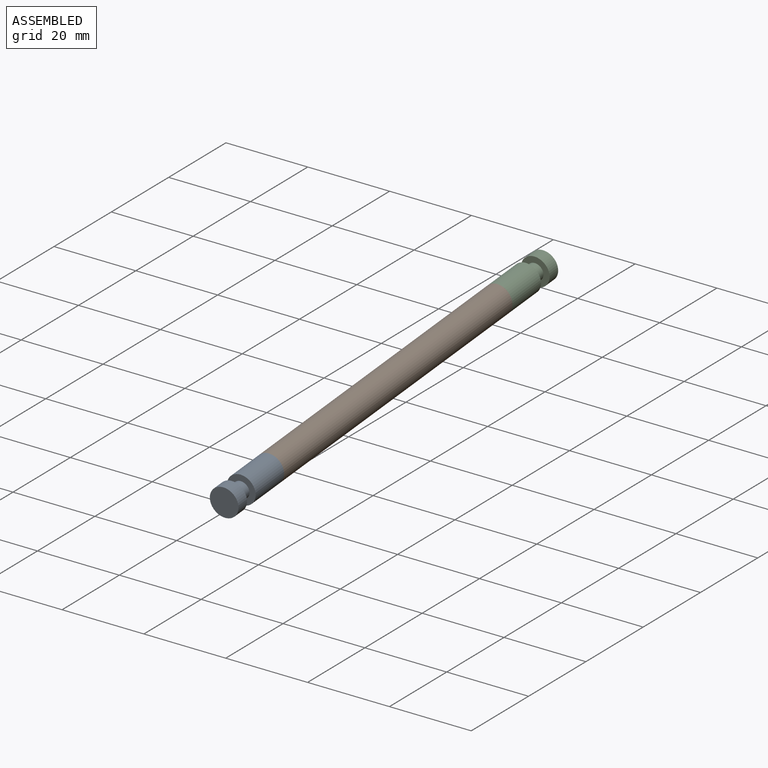
[diagram: assembled view]
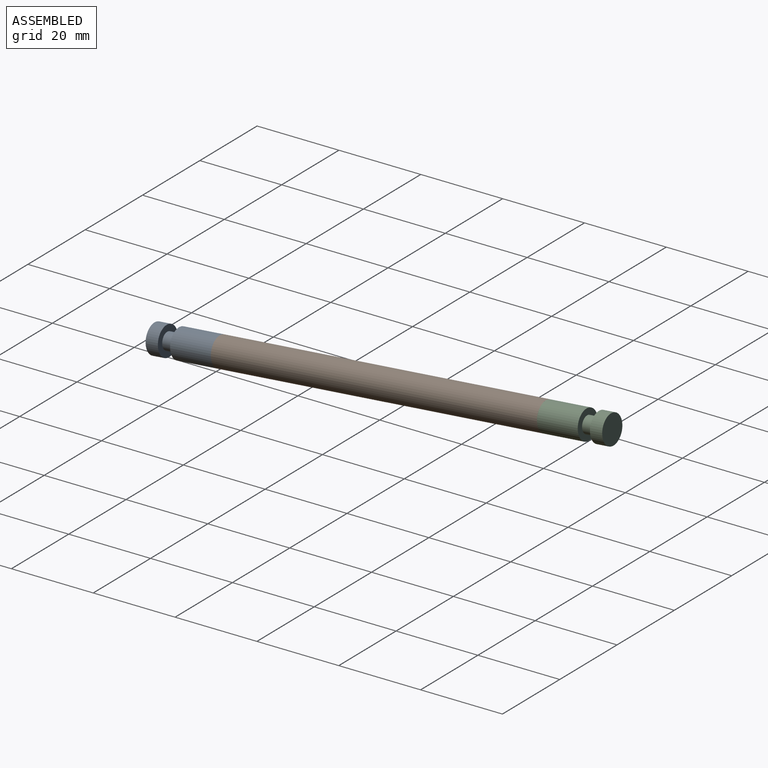
[diagram: assembled view, second angle]
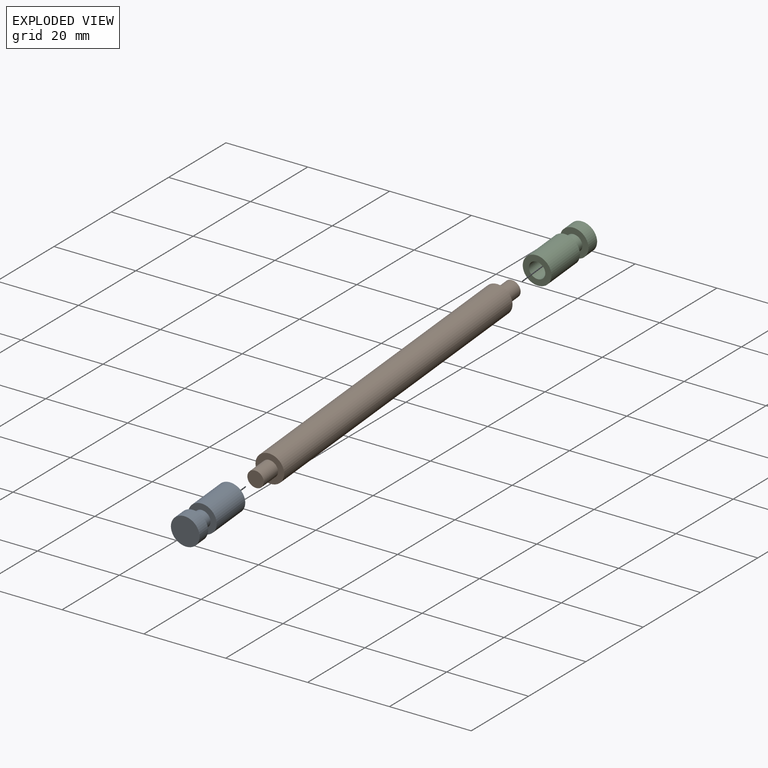
[diagram: exploded view]
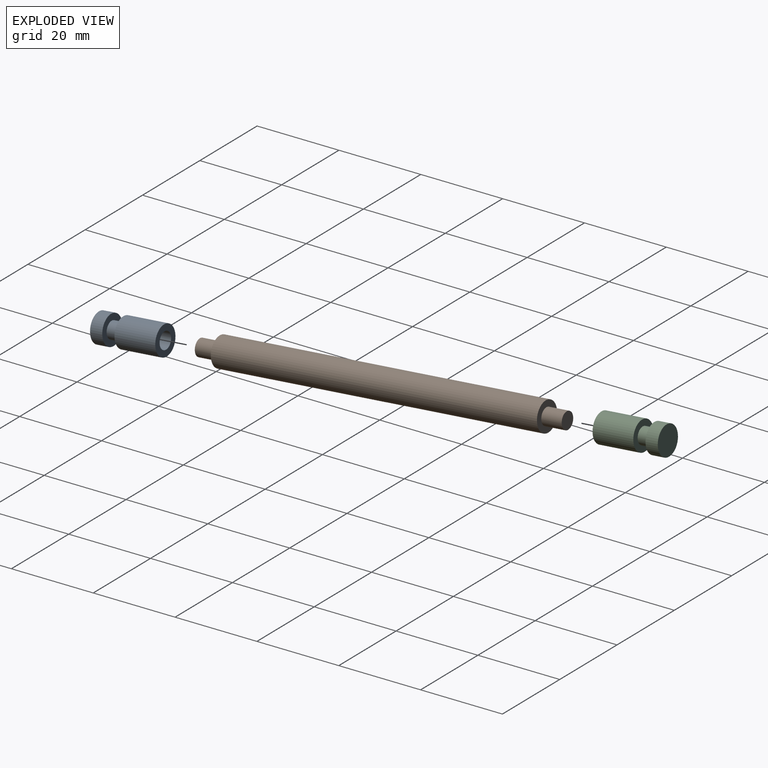
[diagram: exploded view, second angle]
ASSEMBLY  parts=3 mates=2
PART A: 9 faces, bbox 7x16x7 mm
  f0: cylinder r=2mm len=4mm, axis (0,1,0), area 37.7mm2, adj f3,f7
  f1: cylinder r=3.5mm len=7mm, axis (0,-1,0), area 66mm2, adj f2,f3
  f2: plane 7x7mm, normal (0,1,0), area 38.5mm2, adj f1
  f3: plane 7x7mm, normal (0,-1,0), area 25.9mm2, adj f0,f1
  f4: cylinder r=2mm len=6mm, axis (0,1,0), area 75.4mm2, adj f6,f8
  f5: cylinder r=3.5mm len=10mm, axis (0,1,0), area 219.9mm2, adj f6,f7
  f6: plane 7x7mm, normal (0,-1,0), area 25.9mm2, adj f4,f5
  f7: plane 7x7mm, normal (0,1,0), area 25.9mm2, adj f0,f5
  f8: plane 4x4mm, normal (0,-1,0), area 12.6mm2, adj f4
PART B: 7 faces, bbox 7x90x7 mm
  f0: cylinder r=3.5mm len=80mm, axis (0,1,0), area 1759.3mm2, adj f1,f4
  f1: plane 7x7mm, normal (0,-1,0), area 25.9mm2, adj f0,f2
  f2: cylinder r=2mm len=5mm, axis (0,1,0), area 62.8mm2, adj f1,f3
  f3: plane 4x4mm, normal (0,-1,0), area 12.6mm2, adj f2
  f4: plane 7x7mm, normal (0,1,0), area 25.9mm2, adj f0,f5
  f5: cylinder r=2mm len=5mm, axis (0,-1,0), area 62.8mm2, adj f4,f6
  f6: plane 4x4mm, normal (0,1,0), area 12.6mm2, adj f5
PART C: same geometry as A
PLACE A rot(axis=(0,0.04,-1),180deg) t=(-14.68,-28.03,39.38)mm
PLACE B rot(axis=(1,0,0),5deg) t=(-14.68,24.77,43.99)mm
PLACE C rot(axis=(0.04,1,0.04),90.1deg) t=(-14.68,77.57,48.61)mm
MATE slider A.f5 <-> B.f0  axis (0,-1,-0.09) through (-14.68,-15.08,40.51)mm
MATE slider C.f5 <-> B.f2  axis (0,1,0.09) through (-14.68,64.62,47.48)mm
